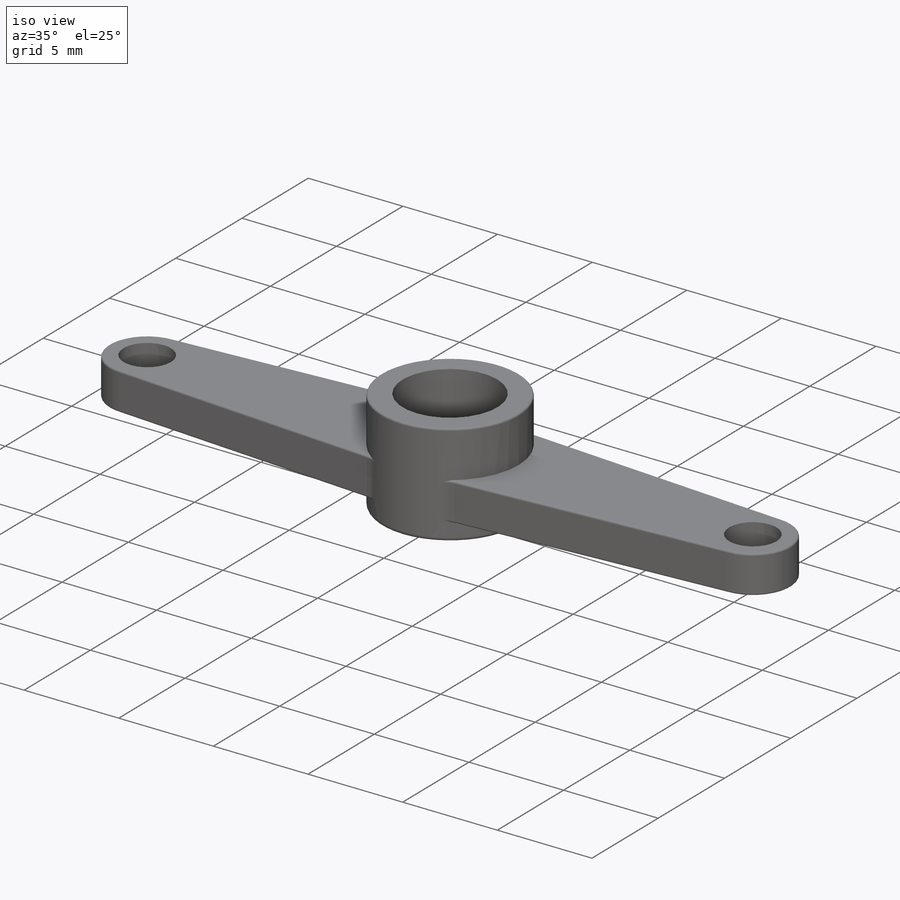
[diagram: iso view]
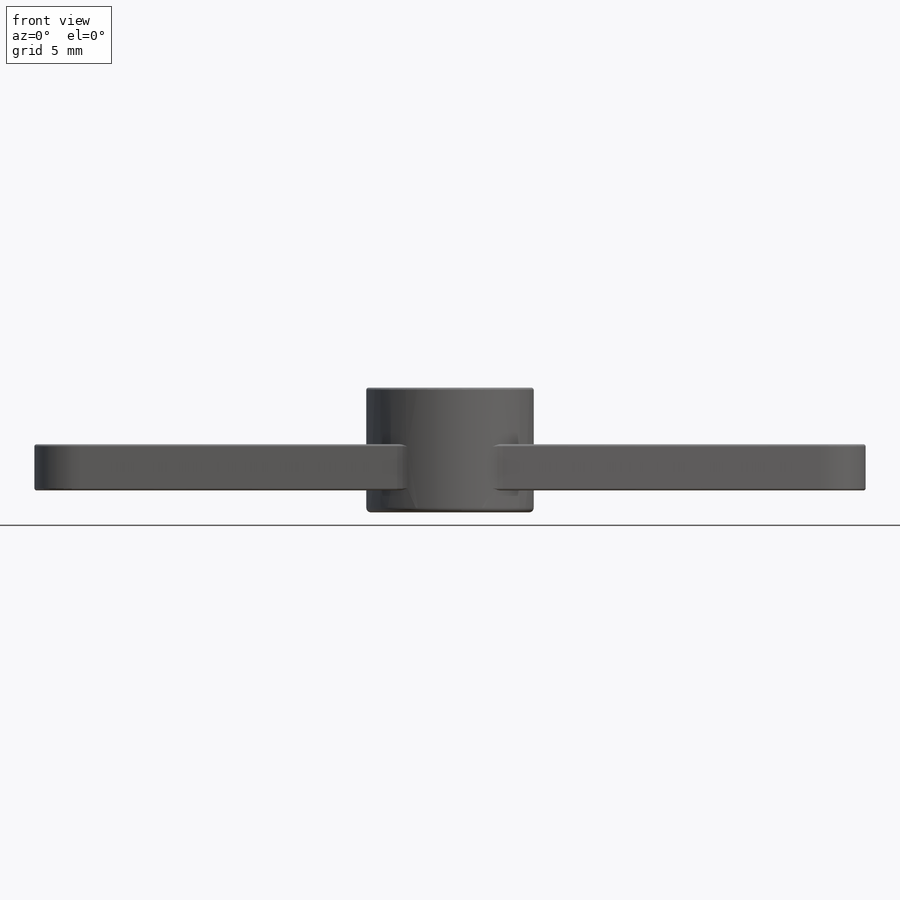
[diagram: front view]
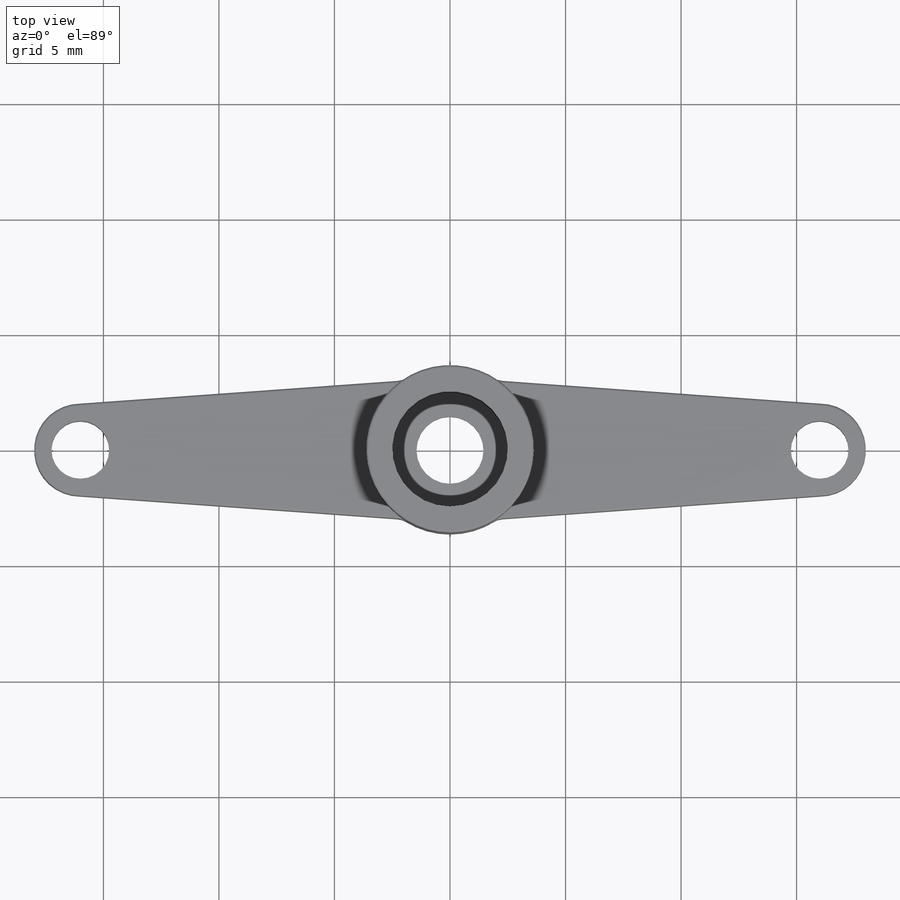
[diagram: top view]
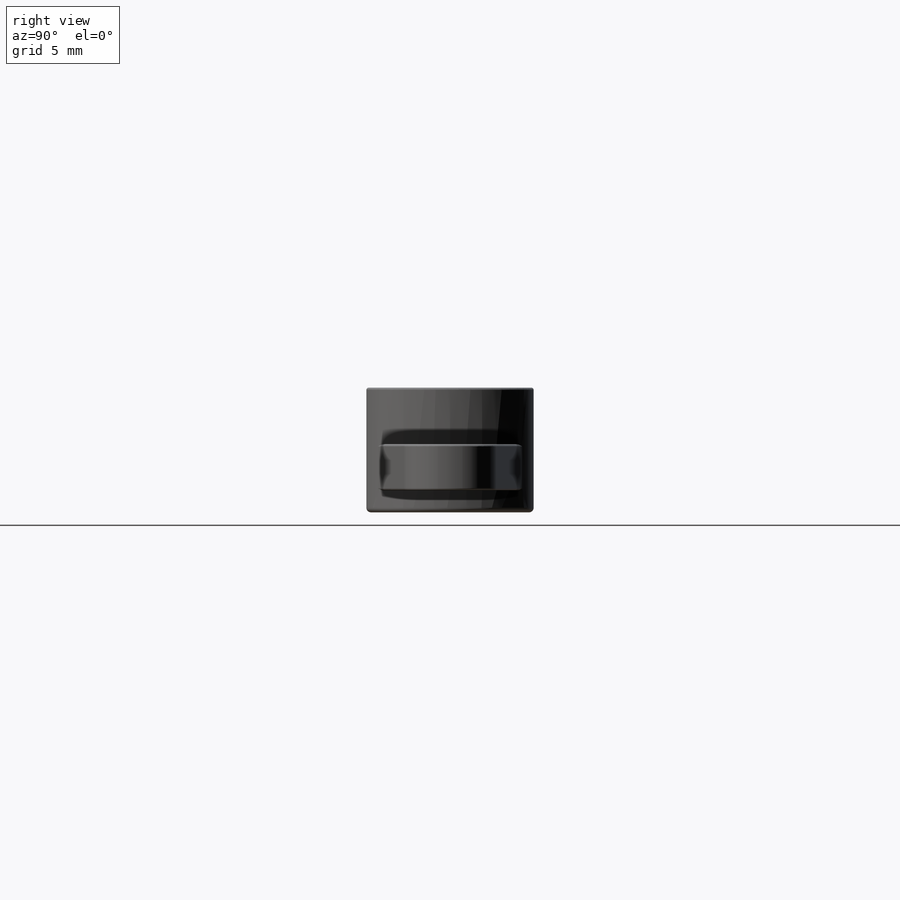
[diagram: right view]
SOLIDWORKS PART (.sldprt)
format: sldprt  version: not decoded by parser v0  size: 359,936 bytes
history: native  units: mm
features: sketch x7, plane x4, fillet x4, extrude x2, hole x2, material x1, cut_extrude x1 (+10 scaffold rows collapsed)
feature tree (31):
  scaffold x10  (default folders/planes/origin — collapsed)
  material  "PVC 0.007 塑化"
  plane  "前视基准面"
  plane  "上视基准面"
  plane  "右视基准面"
  sketch  "草图1"  dims[D1=7.25mm]
  extrude  "凸台-拉伸1"  Depth=5.4mm
  plane  "基准面1"  Offset=0.95mm
  sketch  "草图2"  dims[D1=16.0mm D2=3.0mm]
  extrude  "凸台-拉伸2"  Depth=2mm
  sketch  "草图3"  dims[D1=5.0mm]
  cut_extrude  "切除-拉伸1"  Depth=3.6mm
  hole  "M2.5 六角凹头螺钉的柱形沉头孔1"  [1 undecoded]
  sketch  "草图5"
  sketch  "草图4"  dims[hole-wizard template sketch: 41 standard entries collapsed; hole parameters kept: c12.通孔孔直径=2.9mm c12.通孔孔深度=5.4mm c12.柱形沉头孔直径=4.8mm c12.柱形沉头孔深度=1.0mm]
  hole  "M3 螺纹孔的螺纹孔钻头1"  [1 undecoded]
  sketch  "草图7"
  sketch  "草图6"  dims[hole-wizard template sketch: 46 standard entries collapsed; hole parameters kept: c15.孔直径=2.5mm c15.孔深度=11.0mm c15.D3=~14.816244mm c15.导头角度=118.0deg]
  fillet  "圆角1"  Radius=0.2mm
  fillet  "圆角2"  Radius=0.1mm
  fillet  "圆角3"  Radius=1mm
  fillet  "圆角4"  Radius=0.1mm
decode coverage: 12 of 16 modeling features carry decoded parameters
note: ~ marks probable driven/reference dimensions
note: 2 parameter values undecoded
note: suppression state not decoded; provenance and decode notes live in map.json
